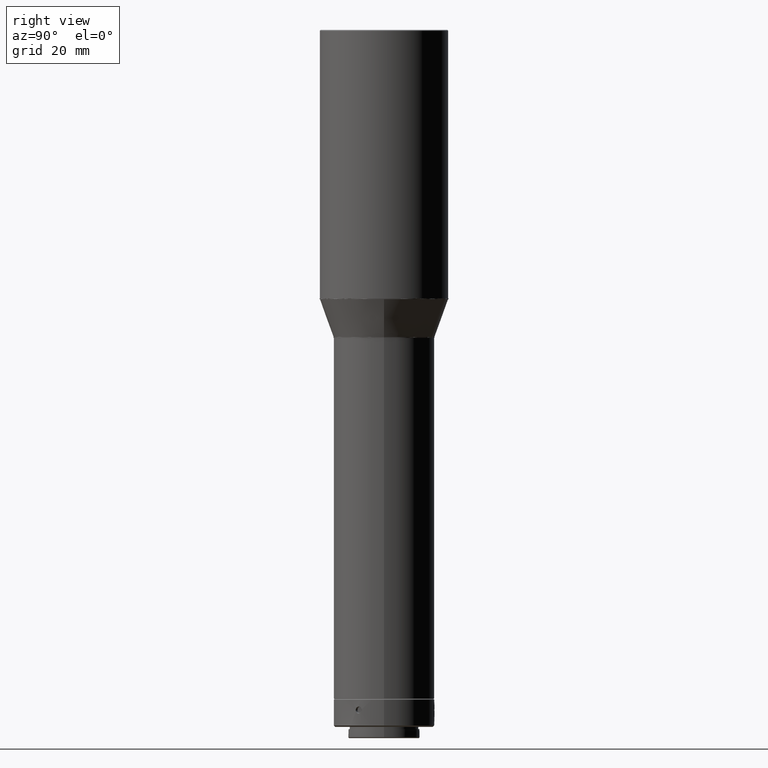
[diagram: clean part render]
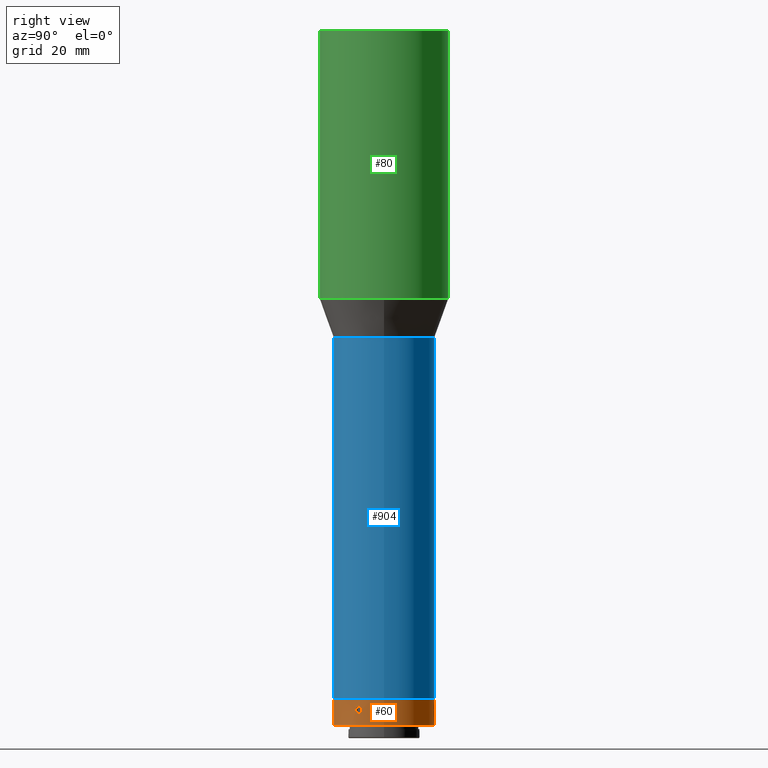
[diagram: same view with three faces highlighted in distinct colors, each labeled with its STEP entity id]
A machine part, right view with three faces highlighted in distinct colors.
Their STEP definitions:

[orange] entity #60 — the highlighted cylindrical surface (bore or boss wall) has radius 18 mm, axis along (0, 0, 1).
#1 = CARTESIAN_POINT ( 'NONE',  ( 1.249999999999990008, 17.95654476785551523, -649.0213657607349660 ) ) ;
#8 = CARTESIAN_POINT ( 'NONE',  ( 14.92582393315538347, -10.06080413865836221, -649.1865650000003143 ) ) ;
#9 = CARTESIAN_POINT ( 'NONE',  ( 0.9991402188564640907, 17.97261914514088232, -648.4179338769148444 ) ) ;
#13 = CARTESIAN_POINT ( 'NONE',  ( 15.50648066428968086, -9.141971952207576635, -647.9366779727665744 ) ) ;
#14 = CARTESIAN_POINT ( 'NONE',  ( 0.3284446131915313982, 17.99763188640061884, -647.9695496990360652 ) ) ;
#18 = CARTESIAN_POINT ( 'NONE',  ( -16.10573089449703588, -8.037996915324857383, -649.8169909346066788 ) ) ;
#24 = ORIENTED_EDGE ( 'NONE', *, *, #215, .T. ) ;
#26 = CARTESIAN_POINT ( 'NONE',  ( 15.74948724688810664, -8.716454428236493968, -647.9687801631304183 ) ) ;
#29 = VERTEX_POINT ( 'NONE', #763 ) ;
#32 = CARTESIAN_POINT ( 'NONE',  ( -15.19026449493896003, -9.657597251847118258, -650.1857350424839979 ) ) ;
#37 = CARTESIAN_POINT ( 'NONE',  ( 14.92582393315540301, -10.06080413865833911, -649.3517642392656626 ) ) ;
#54 = B_SPLINE_CURVE_WITH_KNOTS ( 'NONE', 3,
 ( #8, #918, #243, #909, #383, #754, #300, #682, #13, #539, #26, #545, #846, #110, #121, #719, #496, #852, #351, #418, #199, #569, #558, #333, #130, #193, #857, #563, #188, #940, #783, #55, #37, #649 ),
 .UNSPECIFIED., .T., .F.,
 ( 4, 2, 2, 2, 2, 2, 2, 2, 2, 2, 2, 2, 2, 2, 2, 2, 4 ),
 ( 0.000000000000000000, 0.0004885519476059289922, 0.0009771038952118579844, 0.001465655842817787085, 0.001954207790423715969, 0.002442759738029644852, 0.002931311685635574170, 0.003419863633241503054, 0.003908415580847431937, 0.004396967528453360821, 0.004885519476059289705, 0.005374071423665218589, 0.005862623371271148340, 0.006351175318877077224, 0.006839727266483006107, 0.007328279214088934991, 0.007816831161694863875 ),
 .UNSPECIFIED. ) ;
#55 = CARTESIAN_POINT ( 'NONE',  ( 14.94416663059032047, -10.03373538488428451, -649.5141900172561691 ) ) ;
#60 = ADVANCED_FACE ( 'NONE', ( #843, #173, #133, #504, #604 ), #213, .T. ) ;
#72 = EDGE_CURVE ( 'NONE', #896, #896, #364, .T. ) ;
#73 = CARTESIAN_POINT ( 'NONE',  ( 14.92582393315538347, -10.06080413865836398, -649.1865650000003143 ) ) ;
#84 = CARTESIAN_POINT ( 'NONE',  ( 0.1622121008445742418, 18.00000780388024424, -650.4366773759024909 ) ) ;
#86 = CARTESIAN_POINT ( 'NONE',  ( -1.091986416381325542, 17.96695628302230219, -649.8165726652779313 ) ) ;
#94 = CARTESIAN_POINT ( 'NONE',  ( -0.1639394304986126483, 17.99999215467990155, -650.4364520273641119 ) ) ;
#110 = CARTESIAN_POINT ( 'NONE',  ( 16.06471715756160989, -8.120254114432400527, -648.4186458980900625 ) ) ;
#121 = CARTESIAN_POINT ( 'NONE',  ( 16.10573125108187043, -8.037996199706910261, -648.5561404048877421 ) ) ;
#129 = EDGE_LOOP ( 'NONE', ( #299 ) ) ;
#130 = CARTESIAN_POINT ( 'NONE',  ( 15.67042018912275303, -8.858020365846069666, -650.4364520273639982 ) ) ;
#133 = FACE_BOUND ( 'NONE', #422, .T. ) ;
#154 = CARTESIAN_POINT ( 'NONE',  ( -0.6287950393457076848, 17.98965100100357617, -648.0938893457096128 ) ) ;
#157 = CARTESIAN_POINT ( 'NONE',  ( -1.000012230497473231, 17.97258022027628854, -648.4186458980904035 ) ) ;
#160 = CARTESIAN_POINT ( 'NONE',  ( 1.091987193791645661, 17.96695623533827657, -648.5565586262731586 ) ) ;
#169 = CARTESIAN_POINT ( 'NONE',  ( -16.17582393315548828, -7.895740629197097071, -649.3517642392656626 ) ) ;
#173 = FACE_BOUND ( 'NONE', #406, .T. ) ;
#176 = B_SPLINE_CURVE_WITH_KNOTS ( 'NONE', 3,
 ( #716, #342, #804, #276, #573, #794, #663, #421, #721, #582, #883, #727, #208, #280, #585, #887, #316, #840, #831, #613, #399, #32, #692, #387, #310, #379, #827, #228, #687, #471, #18, #320, #169, #528 ),
 .UNSPECIFIED., .T., .F.,
 ( 4, 2, 2, 2, 2, 2, 2, 2, 2, 2, 2, 2, 2, 2, 2, 2, 4 ),
 ( 0.000000000000000000, 0.0004885519476059289922, 0.0009771038952118579844, 0.001465655842817787085, 0.001954207790423715969, 0.002442759738029644852, 0.002931311685635574170, 0.003419863633241503054, 0.003908415580847431937, 0.004396967528453360821, 0.004885519476059289705, 0.005374071423665218589, 0.005862623371271148340, 0.006351175318877077224, 0.006839727266483006107, 0.007328279214088934991, 0.007816831161694863875 ),
 .UNSPECIFIED. ) ;
#187 = EDGE_LOOP ( 'NONE', ( #271 ) ) ;
#188 = CARTESIAN_POINT ( 'NONE',  ( 15.19139366244527167, -9.655838794076592180, -650.1876616175246681 ) ) ;
#193 = CARTESIAN_POINT ( 'NONE',  ( 15.50735797605621613, -9.140483702072637939, -650.4366773759023772 ) ) ;
#199 = CARTESIAN_POINT ( 'NONE',  ( 16.06431448413916740, -8.121029507381729573, -649.9551971668022361 ) ) ;
#208 = CARTESIAN_POINT ( 'NONE',  ( -15.19139325230757365, -9.655839439901383159, -648.1854689321259002 ) ) ;
#213 = CYLINDRICAL_SURFACE ( 'NONE', #784, 17.99999999999998224 ) ;
#215 = EDGE_CURVE ( 'NONE', #586, #586, #176, .T. ) ;
#228 = CARTESIAN_POINT ( 'NONE',  ( -15.89389197149331956, -8.450273622267820528, -650.2792410156606593 ) ) ;
#229 = CARTESIAN_POINT ( 'NONE',  ( 1.249999999999990008, 17.95654476785551878, -649.1865650000002006 ) ) ;
#243 = CARTESIAN_POINT ( 'NONE',  ( 14.94412286735161643, -10.03380008369033760, -648.8592659706284849 ) ) ;
#244 = CARTESIAN_POINT ( 'NONE',  ( 0.3260722864606758198, 17.99768327192968087, -650.4043499096976575 ) ) ;
#245 = VERTEX_POINT ( 'NONE', #829 ) ;
#271 = ORIENTED_EDGE ( 'NONE', *, *, #72, .F. ) ;
#276 = CARTESIAN_POINT ( 'NONE',  ( -16.10583412538211689, -8.037789467238031449, -648.5565586262732722 ) ) ;
#280 = CARTESIAN_POINT ( 'NONE',  ( -15.06470492706442776, -9.852326105843818738, -648.4186458980900625 ) ) ;
#281 = CARTESIAN_POINT ( 'NONE',  ( -17.99999999999998934, -7.406966693309008114E-32, -645.4865650000000414 ) ) ;
#283 = CARTESIAN_POINT ( 'NONE',  ( -1.777800493511443168E-31, -7.406966693309008114E-32, -645.4865650000000414 ) ) ;
#292 = CARTESIAN_POINT ( 'NONE',  ( -0.9991393837938814526, 17.97261919133769226, -649.9551971668030319 ) ) ;
#299 = ORIENTED_EDGE ( 'NONE', *, *, #587, .T. ) ;
#300 = CARTESIAN_POINT ( 'NONE',  ( 15.26487564935873920, -9.539717018441033147, -648.0942691845231138 ) ) ;
#301 = CARTESIAN_POINT ( 'NONE',  ( -0.3284442371330708044, 17.99763189204309555, -650.4035803772534337 ) ) ;
#310 = CARTESIAN_POINT ( 'NONE',  ( -15.50648075862404873, -9.141971788833744839, -650.4364520273639982 ) ) ;
#316 = CARTESIAN_POINT ( 'NONE',  ( -14.92582376334304506, -10.06080439058545828, -649.0213682969525735 ) ) ;
#320 = CARTESIAN_POINT ( 'NONE',  ( -16.16155305345582960, -7.925160248036692501, -649.5141900172561691 ) ) ;
#333 = CARTESIAN_POINT ( 'NONE',  ( 15.75062854503693544, -8.714374892937581052, -650.4035803772535473 ) ) ;
#342 = CARTESIAN_POINT ( 'NONE',  ( -16.17582393315549893, -7.895740629197040228, -649.0213657607348523 ) ) ;
#348 = CARTESIAN_POINT ( 'NONE',  ( -1.777800493511443168E-31, -7.406966693309008114E-32, -645.1865650000000869 ) ) ;
#351 = CARTESIAN_POINT ( 'NONE',  ( 16.16158696957451824, -7.925090474844772359, -649.5138658894950368 ) ) ;
#364 = CIRCLE ( 'NONE', #890, 17.99999999999998934 ) ;
#365 = EDGE_CURVE ( 'NONE', #590, #590, #54, .T. ) ;
#379 = CARTESIAN_POINT ( 'NONE',  ( -15.66957007690069226, -8.859524101807524588, -650.4366773759023772 ) ) ;
#380 = CARTESIAN_POINT ( 'NONE',  ( -0.7685923121488417165, 17.98395356874549833, -650.1857350424842252 ) ) ;
#383 = CARTESIAN_POINT ( 'NONE',  ( 15.06517464280618945, -9.851590384043102944, -648.4179338769154128 ) ) ;
#387 = CARTESIAN_POINT ( 'NONE',  ( -15.42218430790375372, -9.283256999105448770, -650.4035803772535473 ) ) ;
#399 = CARTESIAN_POINT ( 'NONE',  ( -15.06517510034523077, -9.851589683955893406, -649.9551971668022361 ) ) ;
#406 = EDGE_LOOP ( 'NONE', ( #775 ) ) ;
#418 = CARTESIAN_POINT ( 'NONE',  ( 16.10583377797240345, -8.037790164337403453, -649.8165726652780450 ) ) ;
#421 = CARTESIAN_POINT ( 'NONE',  ( -15.75062872817971993, -8.714374564439964388, -647.9695496990361789 ) ) ;
#422 = EDGE_LOOP ( 'NONE', ( #24 ) ) ;
#446 = CARTESIAN_POINT ( 'NONE',  ( -1.249999696914076530, 17.95654478895409767, -649.3517662896942966 ) ) ;
#450 = CARTESIAN_POINT ( 'NONE',  ( -1.217386932848437020, 17.95889559784531997, -648.8589417959092316 ) ) ;
#455 = CIRCLE ( 'NONE', #917, 17.99999999999998224 ) ;
#460 = CARTESIAN_POINT ( 'NONE',  ( 0.7685930773333912169, 17.98395353626939297, -648.1873955139836880 ) ) ;
#471 = CARTESIAN_POINT ( 'NONE',  ( -16.06471677035725776, -8.120254879791600544, -649.9544851707627231 ) ) ;
#494 = DIRECTION ( 'NONE',  ( -1.000000000000000000, 0.000000000000000000, 0.000000000000000000 ) ) ;
#496 = CARTESIAN_POINT ( 'NONE',  ( 16.17582406642458537, -7.895740356171724095, -649.0213682969525735 ) ) ;
#499 = DIRECTION ( 'NONE',  ( -0.000000000000000000, -0.000000000000000000, 1.000000000000000000 ) ) ;
#504 = FACE_OUTER_BOUND ( 'NONE', #187, .T. ) ;
#510 = DIRECTION ( 'NONE',  ( 0.000000000000000000, 0.000000000000000000, 1.000000000000000000 ) ) ;
#522 = CARTESIAN_POINT ( 'NONE',  ( -1.091756721072176139, 17.96697050981527966, -648.5561404048878558 ) ) ;
#525 = CARTESIAN_POINT ( 'NONE',  ( 0.6291994582050495222, 17.98962860717567125, -648.0942691845228865 ) ) ;
#528 = CARTESIAN_POINT ( 'NONE',  ( -16.17582393315549538, -7.895740629197067761, -649.1865650000003143 ) ) ;
#537 = EDGE_CURVE ( 'NONE', #245, #245, #455, .T. ) ;
#539 = CARTESIAN_POINT ( 'NONE',  ( 15.66957017123612061, -8.859523938431850709, -647.9364526239672841 ) ) ;
#540 = CARTESIAN_POINT ( 'NONE',  ( 0.6287943599332025402, 17.98965102345265876, -650.2792410156605456 ) ) ;
#545 = CARTESIAN_POINT ( 'NONE',  ( 15.89389229175797524, -8.450273022655013122, -648.0938893457093855 ) ) ;
#558 = CARTESIAN_POINT ( 'NONE',  ( 15.89407479287070402, -8.449912178065821067, -650.2788611720303606 ) ) ;
#563 = CARTESIAN_POINT ( 'NONE',  ( 15.26509761156018641, -9.539377401184761851, -650.2792410156606593 ) ) ;
#569 = CARTESIAN_POINT ( 'NONE',  ( 15.95885680708791021, -8.326356316898298360, -650.1857350424839979 ) ) ;
#573 = CARTESIAN_POINT ( 'NONE',  ( -16.06431486166296096, -8.121028761097687010, -648.4179338769154128 ) ) ;
#582 = CARTESIAN_POINT ( 'NONE',  ( -15.50735788173645169, -9.140483865457353474, -647.9364526239672841 ) ) ;
#585 = CARTESIAN_POINT ( 'NONE',  ( -15.01397453000994631, -9.928974310108310775, -648.5561404048877421 ) ) ;
#586 = VERTEX_POINT ( 'NONE', #671 ) ;
#587 = EDGE_CURVE ( 'NONE', #29, #29, #905, .T. ) ;
#590 = VERTEX_POINT ( 'NONE', #73 ) ;
#601 = CARTESIAN_POINT ( 'NONE',  ( 1.091755923036193954, 17.96697055881272931, -649.8169909346066788 ) ) ;
#604 = FACE_BOUND ( 'NONE', #129, .T. ) ;
#609 = CARTESIAN_POINT ( 'NONE',  ( 1.217386422865446960, 17.95889563292106672, -649.5141900172560554 ) ) ;
#613 = CARTESIAN_POINT ( 'NONE',  ( -15.01384736159114119, -9.929166118684822351, -649.8165726652780450 ) ) ;
#614 = CARTESIAN_POINT ( 'NONE',  ( -0.1622122895000124021, 18.00000780388927524, -647.9364526239673978 ) ) ;
#620 = CARTESIAN_POINT ( 'NONE',  ( 1.217464335294311084, 17.95889008224762762, -648.8592659706281438 ) ) ;
#649 = CARTESIAN_POINT ( 'NONE',  ( 14.92582393315538347, -10.06080413865836221, -649.1865650000003143 ) ) ;
#663 = CARTESIAN_POINT ( 'NONE',  ( -15.89407510756408293, -8.449911588734551060, -648.0942691845231138 ) ) ;
#671 = CARTESIAN_POINT ( 'NONE',  ( -16.17582393315549183, -7.895740629197069538, -649.1865650000003143 ) ) ;
#672 = DIRECTION ( 'NONE',  ( 1.000000000000000000, 0.000000000000000000, 0.000000000000000000 ) ) ;
#679 = CARTESIAN_POINT ( 'NONE',  ( 0.1639396191514406742, 17.99999215467085989, -647.9366779727662333 ) ) ;
#682 = CARTESIAN_POINT ( 'NONE',  ( 15.42218411498786956, -9.283257321960562081, -647.9695496990361789 ) ) ;
#687 = CARTESIAN_POINT ( 'NONE',  ( -15.95789852174027779, -8.328213433529215948, -650.1876616175247818 ) ) ;
#690 = ORIENTED_EDGE ( 'NONE', *, *, #537, .T. ) ;
#692 = CARTESIAN_POINT ( 'NONE',  ( -15.26487600238790066, -9.539716451242940209, -650.2788611720303606 ) ) ;
#716 = CARTESIAN_POINT ( 'NONE',  ( -16.17582393315549538, -7.895740629197067761, -649.1865650000003143 ) ) ;
#719 = CARTESIAN_POINT ( 'NONE',  ( 16.16155327807072339, -7.925159788840818287, -648.8589417959090042 ) ) ;
#721 = CARTESIAN_POINT ( 'NONE',  ( -15.67042028344146587, -8.858020202463196213, -647.9366779727665744 ) ) ;
#722 = EDGE_LOOP ( 'NONE', ( #690 ) ) ;
#727 = CARTESIAN_POINT ( 'NONE',  ( -15.26509725241259297, -9.539377978348493770, -648.0938893457093855 ) ) ;
#745 = CARTESIAN_POINT ( 'NONE',  ( -0.6291987904827299749, 17.98962862930883233, -650.2788611720307017 ) ) ;
#751 = CARTESIAN_POINT ( 'NONE',  ( -1.250000303081698849, 17.95654474675724899, -649.0213682969530282 ) ) ;
#754 = CARTESIAN_POINT ( 'NONE',  ( 15.19026408422141650, -9.657597898278519111, -648.1873955139833470 ) ) ;
#755 = CARTESIAN_POINT ( 'NONE',  ( -0.3260726576621926220, 17.99768326650238137, -647.9687801631307593 ) ) ;
#763 = CARTESIAN_POINT ( 'NONE',  ( 1.249999999999989786, 17.95654476785551523, -649.1865650000000869 ) ) ;
#775 = ORIENTED_EDGE ( 'NONE', *, *, #365, .T. ) ;
#783 = CARTESIAN_POINT ( 'NONE',  ( 15.01397497146084881, -9.928973643487806200, -649.8169909346066788 ) ) ;
#784 = AXIS2_PLACEMENT_3D ( 'NONE', #348, #510, #906 ) ;
#794 = CARTESIAN_POINT ( 'NONE',  ( -15.95885716155515155, -8.326355637990774383, -648.1873955139833470 ) ) ;
#804 = CARTESIAN_POINT ( 'NONE',  ( -16.16158720264612114, -7.925089998557202087, -648.8592659706284849 ) ) ;
#827 = CARTESIAN_POINT ( 'NONE',  ( -15.74948706598765291, -8.716454752419847907, -650.4043499096968617 ) ) ;
#828 = CARTESIAN_POINT ( 'NONE',  ( -0.7665056236648876142, 17.98405219532853039, -648.1854689321261276 ) ) ;
#829 = CARTESIAN_POINT ( 'NONE',  ( 17.99999999999998224, -7.406966693309008114E-32, -654.6865649999999732 ) ) ;
#831 = CARTESIAN_POINT ( 'NONE',  ( -14.94412316329295187, -10.03379964370062893, -649.5138658894950368 ) ) ;
#832 = DIRECTION ( 'NONE',  ( 0.000000000000000000, 0.000000000000000000, 1.000000000000000000 ) ) ;
#837 = CARTESIAN_POINT ( 'NONE',  ( 0.7665048592950607365, 17.98405222760582234, -650.1876616175250092 ) ) ;
#840 = CARTESIAN_POINT ( 'NONE',  ( -14.92582410297036333, -10.06080388672737413, -649.3517662896941829 ) ) ;
#841 = CARTESIAN_POINT ( 'NONE',  ( 1.249999999999990008, 17.95654476785552589, -649.3517642392653215 ) ) ;
#843 = FACE_OUTER_BOUND ( 'NONE', #722, .T. ) ;
#846 = CARTESIAN_POINT ( 'NONE',  ( 15.95789887597212342, -8.328212755427088609, -648.1854689321259002 ) ) ;
#852 = CARTESIAN_POINT ( 'NONE',  ( 16.17582379988435193, -7.895740902226648927, -649.3517662896941829 ) ) ;
#857 = CARTESIAN_POINT ( 'NONE',  ( 15.42341477952706974, -9.281228519509754804, -650.4043499096968617 ) ) ;
#883 = CARTESIAN_POINT ( 'NONE',  ( -15.42341458922626352, -9.281228838265821679, -647.9687801631304183 ) ) ;
#887 = CARTESIAN_POINT ( 'NONE',  ( -14.94416634522247556, -10.03373580900443507, -648.8589417959090042 ) ) ;
#890 = AXIS2_PLACEMENT_3D ( 'NONE', #283, #499, #494 ) ;
#896 = VERTEX_POINT ( 'NONE', #281 ) ;
#905 = B_SPLINE_CURVE_WITH_KNOTS ( 'NONE', 3,
 ( #229, #1, #620, #160, #9, #460, #525, #14, #679, #614, #755, #154, #828, #157, #522, #450, #751, #446, #919, #86, #292, #380, #745, #301, #94, #84, #244, #540, #837, #913, #601, #609, #841, #910 ),
 .UNSPECIFIED., .T., .F.,
 ( 4, 2, 2, 2, 2, 2, 2, 2, 2, 2, 2, 2, 2, 2, 2, 2, 4 ),
 ( 0.000000000000000000, 0.0004885519476059270406, 0.0009771038952118540812, 0.001465655842817781230, 0.001954207790423708596, 0.002442759738029636179, 0.002931311685635563328, 0.003419863633241490477, 0.003908415580847418060, 0.004396967528453345209, 0.004885519476059272358, 0.005374071423665199507, 0.005862623371271125788, 0.006351175318877052937, 0.006839727266482980086, 0.007328279214088907235, 0.007816831161694834385 ),
 .UNSPECIFIED. ) ;
#906 = DIRECTION ( 'NONE',  ( 1.000000000000000000, 0.000000000000000000, 0.000000000000000000 ) ) ;
#909 = CARTESIAN_POINT ( 'NONE',  ( 15.01384693159022277, -9.929166768100140317, -648.5565586262732722 ) ) ;
#910 = CARTESIAN_POINT ( 'NONE',  ( 1.249999999999990008, 17.95654476785551878, -649.1865650000002006 ) ) ;
#913 = CARTESIAN_POINT ( 'NONE',  ( 1.000011374074569526, 17.97258026762708383, -649.9544851707624957 ) ) ;
#917 = AXIS2_PLACEMENT_3D ( 'NONE', #968, #832, #672 ) ;
#918 = CARTESIAN_POINT ( 'NONE',  ( 14.92582393315536748, -10.06080413865838530, -649.0213657607348523 ) ) ;
#919 = CARTESIAN_POINT ( 'NONE',  ( -1.217463806281646965, 17.95889011854546879, -649.5138658894954915 ) ) ;
#940 = CARTESIAN_POINT ( 'NONE',  ( 15.06470539628271865, -9.852325387835461967, -649.9544851707627231 ) ) ;
#968 = CARTESIAN_POINT ( 'NONE',  ( -1.777800493511443168E-31, -7.406966693309008114E-32, -654.6865649999999732 ) ) ;

[blue] entity #904 — the highlighted cylindrical surface (bore or boss wall) has radius 18 mm, axis along (-0, 0, 1).
#40 = EDGE_LOOP ( 'NONE', ( #567 ) ) ;
#91 = CARTESIAN_POINT ( 'NONE',  ( 17.99999999999998579, 4.093354042114953645E-15, -516.6802790779815950 ) ) ;
#118 = AXIS2_PLACEMENT_3D ( 'NONE', #624, #177, #766 ) ;
#150 = CARTESIAN_POINT ( 'NONE',  ( -9.500559516901443495E-15, 4.093354042114953645E-15, -516.6802790779815950 ) ) ;
#177 = DIRECTION ( 'NONE',  ( -2.775557561562890858E-16, 6.938893903907240704E-17, 1.000000000000000000 ) ) ;
#235 = EDGE_CURVE ( 'NONE', #359, #359, #533, .T. ) ;
#359 = VERTEX_POINT ( 'NONE', #665 ) ;
#427 = FACE_OUTER_BOUND ( 'NONE', #40, .T. ) ;
#441 = DIRECTION ( 'NONE',  ( -2.775557561562890858E-16, 6.938893903907240704E-17, 1.000000000000000000 ) ) ;
#442 = DIRECTION ( 'NONE',  ( 2.775557561562890858E-16, -6.938893903907240704E-17, -1.000000000000000000 ) ) ;
#500 = DIRECTION ( 'NONE',  ( 1.000000000000000000, 0.000000000000000000, 0.000000000000000000 ) ) ;
#531 = CIRCLE ( 'NONE', #816, 17.99999999999999645 ) ;
#533 = CIRCLE ( 'NONE', #118, 17.99999999999999645 ) ;
#567 = ORIENTED_EDGE ( 'NONE', *, *, #865, .T. ) ;
#624 = CARTESIAN_POINT ( 'NONE',  ( 2.613934426740503819E-14, -4.816621903961684131E-15, -645.0865650000000642 ) ) ;
#665 = CARTESIAN_POINT ( 'NONE',  ( 18.00000000000002132, -4.816621903961684131E-15, -645.0865650000000642 ) ) ;
#668 = CYLINDRICAL_SURFACE ( 'NONE', #844, 17.99999999999999645 ) ;
#696 = ORIENTED_EDGE ( 'NONE', *, *, #235, .T. ) ;
#728 = CARTESIAN_POINT ( 'NONE',  ( -1.931667116458631085E-14, 6.547381954036175217E-15, -481.3140096709890372 ) ) ;
#766 = DIRECTION ( 'NONE',  ( 1.000000000000000000, 0.000000000000000000, 0.000000000000000000 ) ) ;
#814 = FACE_OUTER_BOUND ( 'NONE', #939, .T. ) ;
#816 = AXIS2_PLACEMENT_3D ( 'NONE', #150, #442, #500 ) ;
#819 = DIRECTION ( 'NONE',  ( 1.000000000000000000, 0.000000000000000000, 0.000000000000000000 ) ) ;
#844 = AXIS2_PLACEMENT_3D ( 'NONE', #728, #441, #819 ) ;
#865 = EDGE_CURVE ( 'NONE', #903, #903, #531, .T. ) ;
#903 = VERTEX_POINT ( 'NONE', #91 ) ;
#904 = ADVANCED_FACE ( 'NONE', ( #427, #814 ), #668, .T. ) ;
#939 = EDGE_LOOP ( 'NONE', ( #696 ) ) ;

[green] entity #80 — the highlighted cylindrical surface (bore or boss wall) has radius 23 mm, axis along (-0, 0, 1).
#4 = VERTEX_POINT ( 'NONE', #209 ) ;
#68 = DIRECTION ( 'NONE',  ( 1.000000000000000000, 0.000000000000000000, 0.000000000000000000 ) ) ;
#80 = ADVANCED_FACE ( 'NONE', ( #646, #589 ), #127, .T. ) ;
#82 = VERTEX_POINT ( 'NONE', #369 ) ;
#85 = CARTESIAN_POINT ( 'NONE',  ( -1.341133151721931093E-14, 5.071047042194424054E-15, -502.5902380192916894 ) ) ;
#123 = DIRECTION ( 'NONE',  ( 3.619218167236884816E-16, -9.997898196022511588E-17, -1.000000000000000000 ) ) ;
#127 = CYLINDRICAL_SURFACE ( 'NONE', #295, 23.00000000000008882 ) ;
#138 = CARTESIAN_POINT ( 'NONE',  ( -4.359542738821172467E-14, 4.404808832176501251E-15, -407.0000000000000000 ) ) ;
#203 = DIRECTION ( 'NONE',  ( 1.000000000000000000, 0.000000000000000000, 0.000000000000000000 ) ) ;
#209 = CARTESIAN_POINT ( 'NONE',  ( -23.00000000000001421, 8.103343678201882066E-15, -502.5902380192916894 ) ) ;
#210 = EDGE_CURVE ( 'NONE', #82, #82, #967, .T. ) ;
#295 = AXIS2_PLACEMENT_3D ( 'NONE', #138, #426, #68 ) ;
#347 = EDGE_CURVE ( 'NONE', #4, #4, #954, .T. ) ;
#369 = CARTESIAN_POINT ( 'NONE',  ( 23.00000000000004619, 4.374815137588443976E-15, -407.2999999999999545 ) ) ;
#392 = DIRECTION ( 'NONE',  ( -1.000000000000000000, 1.318389841742373145E-16, 0.000000000000000000 ) ) ;
#426 = DIRECTION ( 'NONE',  ( -3.619218167236884816E-16, 9.997898196022511588E-17, 1.000000000000000000 ) ) ;
#491 = EDGE_LOOP ( 'NONE', ( #495 ) ) ;
#495 = ORIENTED_EDGE ( 'NONE', *, *, #347, .F. ) ;
#554 = AXIS2_PLACEMENT_3D ( 'NONE', #789, #123, #203 ) ;
#574 = AXIS2_PLACEMENT_3D ( 'NONE', #85, #924, #392 ) ;
#589 = FACE_OUTER_BOUND ( 'NONE', #491, .T. ) ;
#641 = ORIENTED_EDGE ( 'NONE', *, *, #210, .T. ) ;
#646 = FACE_OUTER_BOUND ( 'NONE', #839, .T. ) ;
#789 = CARTESIAN_POINT ( 'NONE',  ( -4.348685084319464532E-14, 4.374815137588443976E-15, -407.2999999999999545 ) ) ;
#839 = EDGE_LOOP ( 'NONE', ( #641 ) ) ;
#924 = DIRECTION ( 'NONE',  ( 2.775557561562890858E-16, -6.938893903907240704E-17, -1.000000000000000000 ) ) ;
#954 = CIRCLE ( 'NONE', #574, 23.00000000000000000 ) ;
#967 = CIRCLE ( 'NONE', #554, 23.00000000000008882 ) ;